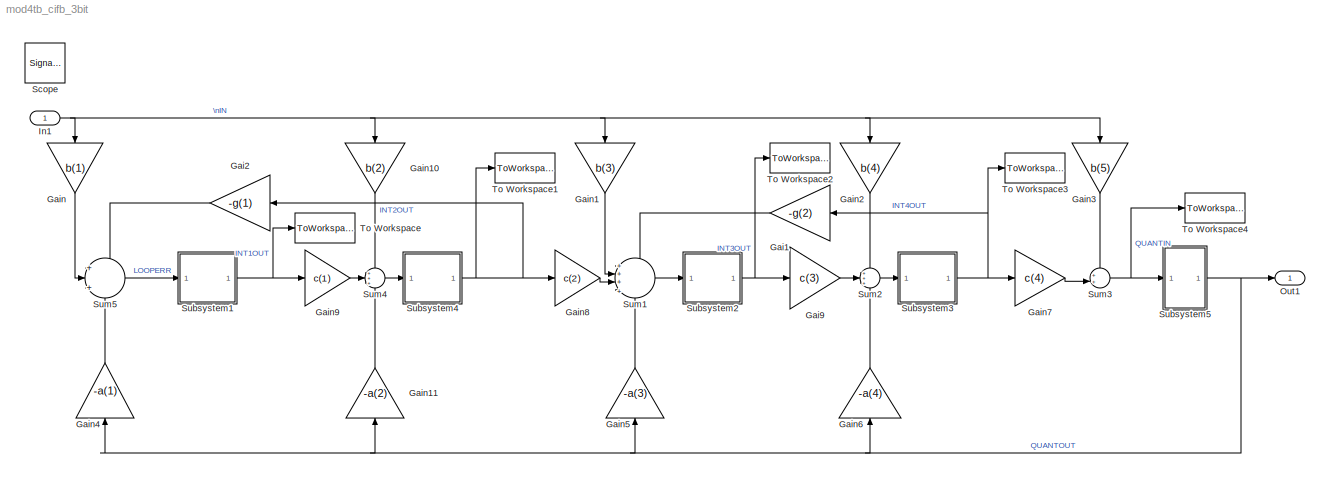
MODEL mod4tb_cifb_3bit
KIND model
BLOCK [Gain] Gai1
  Gain = -g(2)
  OutDataTypeStr = Inherit: Inherit via internal rule
  ParamDataTypeStr = Inherit: Inherit via internal rule
  SID = 132
  SaturateOnIntegerOverflow = off
BLOCK [Gain] Gai2
  Gain = -g(1)
  OutDataTypeStr = Inherit: Inherit via internal rule
  ParamDataTypeStr = Inherit: Inherit via internal rule
  SID = 248
  SaturateOnIntegerOverflow = off
BLOCK [Gain] Gai9
  Gain = c(3)
  OutDataTypeStr = Inherit: Inherit via internal rule
  ParamDataTypeStr = Inherit: Inherit via internal rule
  SID = 130
  SaturateOnIntegerOverflow = off
BLOCK [Gain] Gain
  Gain = b(1)
  OutDataTypeStr = Inherit: Inherit via internal rule
  ParamDataTypeStr = Inherit: Inherit via internal rule
  SID = 121
  SaturateOnIntegerOverflow = off
BLOCK [Gain] Gain1
  Gain = b(3)
  OutDataTypeStr = Inherit: Inherit via internal rule
  ParamDataTypeStr = Inherit: Inherit via internal rule
  SID = 122
  SaturateOnIntegerOverflow = off
BLOCK [Gain] Gain10
  Gain = b(2)
  OutDataTypeStr = Inherit: Inherit via internal rule
  ParamDataTypeStr = Inherit: Inherit via internal rule
  SID = 246
  SaturateOnIntegerOverflow = off
BLOCK [Gain] Gain11
  Gain = -a(2)
  OutDataTypeStr = Inherit: Inherit via internal rule
  ParamDataTypeStr = Inherit: Inherit via internal rule
  SID = 249
  SaturateOnIntegerOverflow = off
BLOCK [Gain] Gain2
  Gain = b(4)
  OutDataTypeStr = Inherit: Inherit via internal rule
  ParamDataTypeStr = Inherit: Inherit via internal rule
  SID = 123
  SaturateOnIntegerOverflow = off
BLOCK [Gain] Gain3
  Gain = b(5)
  OutDataTypeStr = Inherit: Inherit via internal rule
  ParamDataTypeStr = Inherit: Inherit via internal rule
  SID = 124
  SaturateOnIntegerOverflow = off
BLOCK [Gain] Gain4
  Gain = -a(1)
  OutDataTypeStr = Inherit: Inherit via internal rule
  ParamDataTypeStr = Inherit: Inherit via internal rule
  SID = 125
  SaturateOnIntegerOverflow = off
BLOCK [Gain] Gain5
  Gain = -a(3)
  OutDataTypeStr = Inherit: Inherit via internal rule
  ParamDataTypeStr = Inherit: Inherit via internal rule
  SID = 126
  SaturateOnIntegerOverflow = off
BLOCK [Gain] Gain6
  Gain = -a(4)
  OutDataTypeStr = Inherit: Inherit via internal rule
  ParamDataTypeStr = Inherit: Inherit via internal rule
  SID = 127
  SaturateOnIntegerOverflow = off
BLOCK [Gain] Gain7
  Gain = c(4)
  OutDataTypeStr = Inherit: Inherit via internal rule
  ParamDataTypeStr = Inherit: Inherit via internal rule
  SID = 131
  SaturateOnIntegerOverflow = off
BLOCK [Gain] Gain8
  Gain = c(2)
  OutDataTypeStr = Inherit: Inherit via internal rule
  ParamDataTypeStr = Inherit: Inherit via internal rule
  SID = 129
  SaturateOnIntegerOverflow = off
BLOCK [Gain] Gain9
  Gain = c(1)
  OutDataTypeStr = Inherit: Inherit via internal rule
  ParamDataTypeStr = Inherit: Inherit via internal rule
  SID = 237
  SaturateOnIntegerOverflow = off
BLOCK [Inport] In1
  IconDisplay = Port number
  SID = 73
BLOCK [Outport] Out1
  IconDisplay = Port number
  SID = 74
BLOCK [SignalViewerScope] Scope
  IOType = viewer
  MaxDataPoints = 7500
  NumInputPorts = 7
  Ports = []
  RefreshTime = 0.035000
  SID = 207
  ShowDataMarkers = off
  ShowLegends = off
  YMax = 5~5~5~5~5~5~5
  YMin = -5~-5~-5~-5~-5~-5~-5
  ZoomMode = xonly
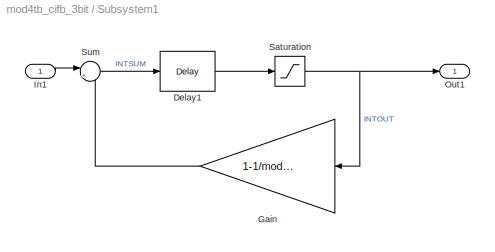
BLOCK [SubSystem] Subsystem1
  AttributesFormatString = Leaky delaying integrator
  FunctionWithSeparateData = off
  MaskHideContents = off
  MinAlgLoopOccurrences = off
  Opaque = off
  Ports = [1, 1]
  PropExecContextOutsideSubsystem = off
  RTWSystemCode = Auto
  RequestExecContextInheritance = off
  SID = 216
BLOCK [Reference] Subsystem1/Delay1  REF=dspsigops/Delay
  InputProcessing = Inherited (this choice will be removed - see release notes)
  Ports = [1, 1]
  SID = 218
  SourceBlock = dspsigops/Delay
  SourceType = Delay
  UserData = DataTag0
  UserDataPersistent = on
  delay = 1
  dif_ic_for_ch = off
  dif_ic_for_dly = off
  dly_unit = Samples
  ic = 0
  ic_detail = off
  reset_popup = None
BLOCK [Gain] Subsystem1/Gain
  AttributesFormatString = Integrator leakage
  Gain = 1-1/modctrl.igain1
  OutDataTypeStr = Inherit: Inherit via internal rule
  ParamDataTypeStr = Inherit: Inherit via internal rule
  SID = 219
  SaturateOnIntegerOverflow = off
BLOCK [Inport] Subsystem1/In1
  IconDisplay = Port number
  SID = 217
BLOCK [Outport] Subsystem1/Out1
  IconDisplay = Port number
  SID = 222
BLOCK [Saturate] Subsystem1/Saturation
  InputPortMap = u0
  LowerLimit = -(modctrl.isat1)
  Ports = [1, 1]
  SID = 220
  UpperLimit = modctrl.isat1
BLOCK [Sum] Subsystem1/Sum
  AttributesFormatString = Integrator summer
  IconShape = round
  InputSameDT = off
  Inputs = |++
  OutDataTypeStr = Inherit: Inherit via internal rule
  Ports = [2, 1]
  SID = 221
  SaturateOnIntegerOverflow = off
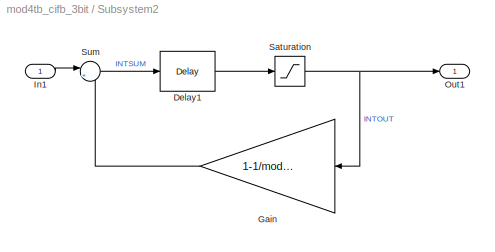
BLOCK [SubSystem] Subsystem2
  AttributesFormatString = Leaky delaying integrator
  FunctionWithSeparateData = off
  MaskHideContents = off
  MinAlgLoopOccurrences = off
  Opaque = off
  Ports = [1, 1]
  PropExecContextOutsideSubsystem = off
  RTWSystemCode = Auto
  RequestExecContextInheritance = off
  SID = 223
BLOCK [Reference] Subsystem2/Delay1  REF=dspsigops/Delay
  InputProcessing = Inherited (this choice will be removed - see release notes)
  Ports = [1, 1]
  SID = 225
  SourceBlock = dspsigops/Delay
  SourceType = Delay
  UserData = DataTag1
  UserDataPersistent = on
  delay = 1
  dif_ic_for_ch = off
  dif_ic_for_dly = off
  dly_unit = Samples
  ic = 0
  ic_detail = off
  reset_popup = None
BLOCK [Gain] Subsystem2/Gain
  AttributesFormatString = Integrator leakage
  Gain = 1-1/modctrl.igain1
  OutDataTypeStr = Inherit: Inherit via internal rule
  ParamDataTypeStr = Inherit: Inherit via internal rule
  SID = 226
  SaturateOnIntegerOverflow = off
BLOCK [Inport] Subsystem2/In1
  IconDisplay = Port number
  SID = 224
BLOCK [Outport] Subsystem2/Out1
  IconDisplay = Port number
  SID = 229
BLOCK [Saturate] Subsystem2/Saturation
  InputPortMap = u0
  LowerLimit = -(modctrl.isat1)
  Ports = [1, 1]
  SID = 227
  UpperLimit = modctrl.isat1
BLOCK [Sum] Subsystem2/Sum
  AttributesFormatString = Integrator summer
  IconShape = round
  InputSameDT = off
  Inputs = |++
  OutDataTypeStr = Inherit: Inherit via internal rule
  Ports = [2, 1]
  SID = 228
  SaturateOnIntegerOverflow = off
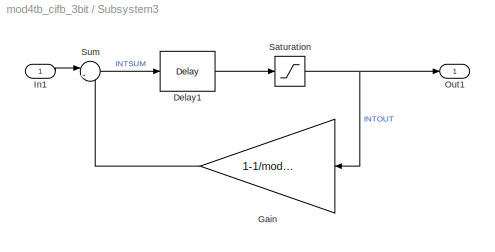
BLOCK [SubSystem] Subsystem3
  AttributesFormatString = Leaky delaying integrator
  FunctionWithSeparateData = off
  MaskHideContents = off
  MinAlgLoopOccurrences = off
  Opaque = off
  Ports = [1, 1]
  PropExecContextOutsideSubsystem = off
  RTWSystemCode = Auto
  RequestExecContextInheritance = off
  SID = 230
BLOCK [Reference] Subsystem3/Delay1  REF=dspsigops/Delay
  InputProcessing = Inherited (this choice will be removed - see release notes)
  Ports = [1, 1]
  SID = 232
  SourceBlock = dspsigops/Delay
  SourceType = Delay
  UserData = DataTag2
  UserDataPersistent = on
  delay = 1
  dif_ic_for_ch = off
  dif_ic_for_dly = off
  dly_unit = Samples
  ic = 0
  ic_detail = off
  reset_popup = None
BLOCK [Gain] Subsystem3/Gain
  AttributesFormatString = Integrator leakage
  Gain = 1-1/modctrl.igain1
  OutDataTypeStr = Inherit: Inherit via internal rule
  ParamDataTypeStr = Inherit: Inherit via internal rule
  SID = 233
  SaturateOnIntegerOverflow = off
BLOCK [Inport] Subsystem3/In1
  IconDisplay = Port number
  SID = 231
BLOCK [Outport] Subsystem3/Out1
  IconDisplay = Port number
  SID = 236
BLOCK [Saturate] Subsystem3/Saturation
  InputPortMap = u0
  LowerLimit = -(modctrl.isat1)
  Ports = [1, 1]
  SID = 234
  UpperLimit = modctrl.isat1
BLOCK [Sum] Subsystem3/Sum
  AttributesFormatString = Integrator summer
  IconShape = round
  InputSameDT = off
  Inputs = |++
  OutDataTypeStr = Inherit: Inherit via internal rule
  Ports = [2, 1]
  SID = 235
  SaturateOnIntegerOverflow = off
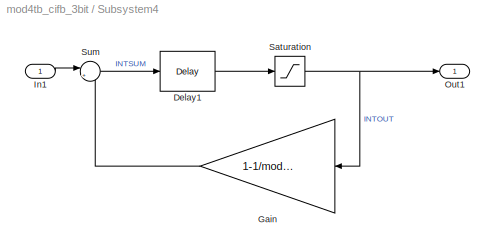
BLOCK [SubSystem] Subsystem4
  AttributesFormatString = Leaky delaying integrator
  FunctionWithSeparateData = off
  MaskHideContents = off
  MinAlgLoopOccurrences = off
  Opaque = off
  Ports = [1, 1]
  PropExecContextOutsideSubsystem = off
  RTWSystemCode = Auto
  RequestExecContextInheritance = off
  SID = 238
BLOCK [Reference] Subsystem4/Delay1  REF=dspsigops/Delay
  InputProcessing = Inherited (this choice will be removed - see release notes)
  Ports = [1, 1]
  SID = 240
  SourceBlock = dspsigops/Delay
  SourceType = Delay
  UserData = DataTag3
  UserDataPersistent = on
  delay = 1
  dif_ic_for_ch = off
  dif_ic_for_dly = off
  dly_unit = Samples
  ic = 0
  ic_detail = off
  reset_popup = None
BLOCK [Gain] Subsystem4/Gain
  AttributesFormatString = Integrator leakage
  Gain = 1-1/modctrl.igain1
  OutDataTypeStr = Inherit: Inherit via internal rule
  ParamDataTypeStr = Inherit: Inherit via internal rule
  SID = 241
  SaturateOnIntegerOverflow = off
BLOCK [Inport] Subsystem4/In1
  IconDisplay = Port number
  SID = 239
BLOCK [Outport] Subsystem4/Out1
  IconDisplay = Port number
  SID = 244
BLOCK [Saturate] Subsystem4/Saturation
  InputPortMap = u0
  LowerLimit = -(modctrl.isat1)
  Ports = [1, 1]
  SID = 242
  UpperLimit = modctrl.isat1
BLOCK [Sum] Subsystem4/Sum
  AttributesFormatString = Integrator summer
  IconShape = round
  InputSameDT = off
  Inputs = |++
  OutDataTypeStr = Inherit: Inherit via internal rule
  Ports = [2, 1]
  SID = 243
  SaturateOnIntegerOverflow = off
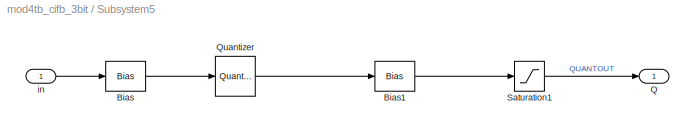
BLOCK [SubSystem] Subsystem5
  AttributesFormatString = 3-bit quantiser
  FunctionWithSeparateData = off
  MaskHideContents = off
  MinAlgLoopOccurrences = off
  Opaque = off
  Ports = [1, 1]
  PropExecContextOutsideSubsystem = off
  RTWSystemCode = Auto
  RequestExecContextInheritance = off
  SID = 251
BLOCK [Bias] Subsystem5/Bias
  AttributesFormatString = Need offset to give\\nMID-RISE quantiser
  Bias = 1/7
  SID = 253
  SaturateOnIntegerOverflow = off
BLOCK [Bias] Subsystem5/Bias1
  Bias = -1/7
  SID = 254
  SaturateOnIntegerOverflow = off
BLOCK [Outport] Subsystem5/Q
  IconDisplay = Port number
  SID = 257
BLOCK [Quantizer] Subsystem5/Quantizer
  LinearizeAsGain = off
  QuantizationInterval = 2/7
  SID = 255
BLOCK [Saturate] Subsystem5/Saturation1
  AttributesFormatString = Limit quantiser\\noutput to +/-1
  InputPortMap = u0
  LowerLimit = -1
  Ports = [1, 1]
  SID = 256
  UpperLimit = 1
BLOCK [Inport] Subsystem5/in
  IconDisplay = Port number
  SID = 252
BLOCK [Sum] Sum1
  IconShape = round
  InputSameDT = off
  Inputs = +++|+
  OutDataTypeStr = Inherit: Inherit via internal rule
  Ports = [4, 1]
  SID = 116
  SaturateOnIntegerOverflow = off
BLOCK [Sum] Sum2
  IconShape = round
  InputSameDT = off
  Inputs = +++
  OutDataTypeStr = Inherit: Inherit via internal rule
  Ports = [3, 1]
  SID = 117
  SaturateOnIntegerOverflow = off
BLOCK [Sum] Sum3
  IconShape = round
  InputSameDT = off
  Inputs = ++|
  OutDataTypeStr = Inherit: Inherit via internal rule
  Ports = [2, 1]
  SID = 118
  SaturateOnIntegerOverflow = off
BLOCK [Sum] Sum4
  IconShape = round
  InputSameDT = off
  Inputs = +++
  OutDataTypeStr = Inherit: Inherit via internal rule
  Ports = [3, 1]
  SID = 250
  SaturateOnIntegerOverflow = off
BLOCK [Sum] Sum5
  IconShape = round
  InputSameDT = off
  Inputs = +|+|||+
  OutDataTypeStr = Inherit: Inherit via internal rule
  Ports = [3, 1]
  SID = 247
  SaturateOnIntegerOverflow = off
BLOCK [ToWorkspace] To Workspace
  MaxDataPoints = inf
  Ports = [1]
  SID = 258
  SampleTime = -1
  VariableName = INT1OUT
BLOCK [ToWorkspace] To Workspace1
  MaxDataPoints = inf
  Ports = [1]
  SID = 259
  SampleTime = -1
  VariableName = INT2OUT
BLOCK [ToWorkspace] To Workspace2
  MaxDataPoints = inf
  Ports = [1]
  SID = 260
  SampleTime = -1
  VariableName = INT3OUT
BLOCK [ToWorkspace] To Workspace3
  MaxDataPoints = inf
  Ports = [1]
  SID = 261
  SampleTime = -1
  VariableName = INT4OUT
BLOCK [ToWorkspace] To Workspace4
  MaxDataPoints = inf
  Ports = [1]
  SID = 262
  SampleTime = -1
  VariableName = Qin
LINE Gai1:1 -> Sum1:1
LINE Gai2:1 -> Sum5:1
LINE Gai9:1 -> Sum2:2
LINE Gain10:1 -> Sum4:1
LINE Gain11:1 -> Sum4:3
LINE Gain1:1 -> Sum1:2
LINE Gain2:1 -> Sum2:1
LINE Gain3:1 -> Sum3:1
LINE Gain4:1 -> Sum5:3
LINE Gain5:1 -> Sum1:4
LINE Gain6:1 -> Sum2:3
LINE Gain7:1 -> Sum3:2
LINE Gain8:1 -> Sum1:3
LINE Gain9:1 -> Sum4:2
LINE Gain:1 -> Sum5:2
NET In1:1 -> Gain10:1, Gain1:1, Gain2:1, Gain3:1, Gain:1
LINE Subsystem1/Delay1:1 -> Subsystem1/Saturation:1
LINE Subsystem1/Gain:1 -> Subsystem1/Sum:2
LINE Subsystem1/In1:1 -> Subsystem1/Sum:1
NET Subsystem1/Saturation:1 -> Subsystem1/Gain:1, Subsystem1/Out1:1
LINE Subsystem1/Sum:1 -> Subsystem1/Delay1:1
NET Subsystem1:1 -> Gain9:1, To Workspace:1
LINE Subsystem2/Delay1:1 -> Subsystem2/Saturation:1
LINE Subsystem2/Gain:1 -> Subsystem2/Sum:2
LINE Subsystem2/In1:1 -> Subsystem2/Sum:1
NET Subsystem2/Saturation:1 -> Subsystem2/Gain:1, Subsystem2/Out1:1
LINE Subsystem2/Sum:1 -> Subsystem2/Delay1:1
NET Subsystem2:1 -> Gai9:1, To Workspace2:1
LINE Subsystem3/Delay1:1 -> Subsystem3/Saturation:1
LINE Subsystem3/Gain:1 -> Subsystem3/Sum:2
LINE Subsystem3/In1:1 -> Subsystem3/Sum:1
NET Subsystem3/Saturation:1 -> Subsystem3/Gain:1, Subsystem3/Out1:1
LINE Subsystem3/Sum:1 -> Subsystem3/Delay1:1
NET Subsystem3:1 -> Gai1:1, Gain7:1, To Workspace3:1
LINE Subsystem4/Delay1:1 -> Subsystem4/Saturation:1
LINE Subsystem4/Gain:1 -> Subsystem4/Sum:2
LINE Subsystem4/In1:1 -> Subsystem4/Sum:1
NET Subsystem4/Saturation:1 -> Subsystem4/Gain:1, Subsystem4/Out1:1
LINE Subsystem4/Sum:1 -> Subsystem4/Delay1:1
NET Subsystem4:1 -> Gai2:1, Gain8:1, To Workspace1:1
LINE Subsystem5/Bias1:1 -> Subsystem5/Saturation1:1
LINE Subsystem5/Bias:1 -> Subsystem5/Quantizer:1
LINE Subsystem5/Quantizer:1 -> Subsystem5/Bias1:1
LINE Subsystem5/Saturation1:1 -> Subsystem5/Q:1
LINE Subsystem5/in:1 -> Subsystem5/Bias:1
NET Subsystem5:1 -> Gain11:1, Gain4:1, Gain5:1, Gain6:1, Out1:1
LINE Sum1:1 -> Subsystem2:1
LINE Sum2:1 -> Subsystem3:1
NET Sum3:1 -> Subsystem5:1, To Workspace4:1
LINE Sum4:1 -> Subsystem4:1
LINE Sum5:1 -> Subsystem1:1
note: NET lines group one-source signal fan-out (src -> all destinations, sorted); 1:1 wires keep LINE
